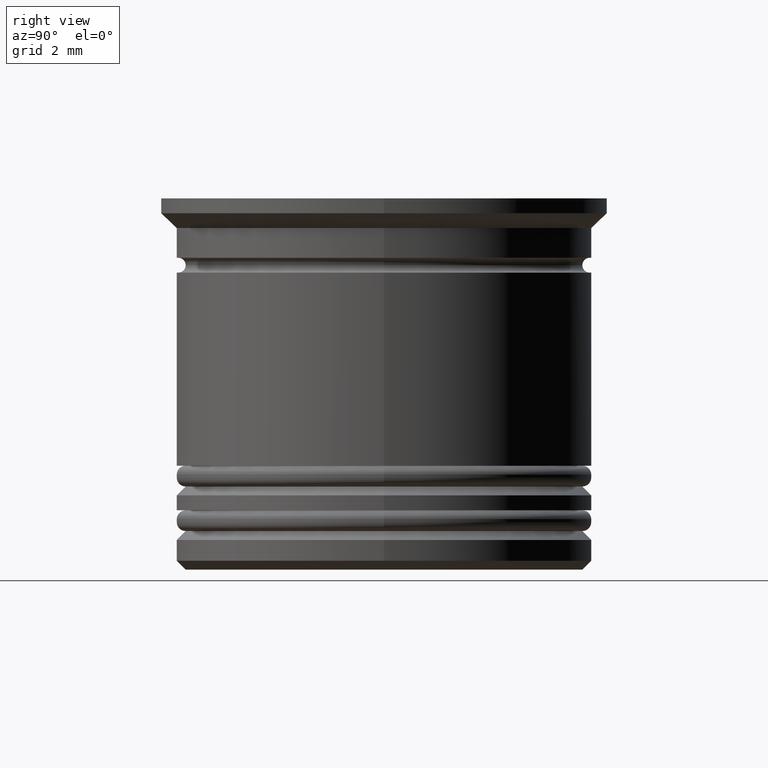
[diagram: clean part render]
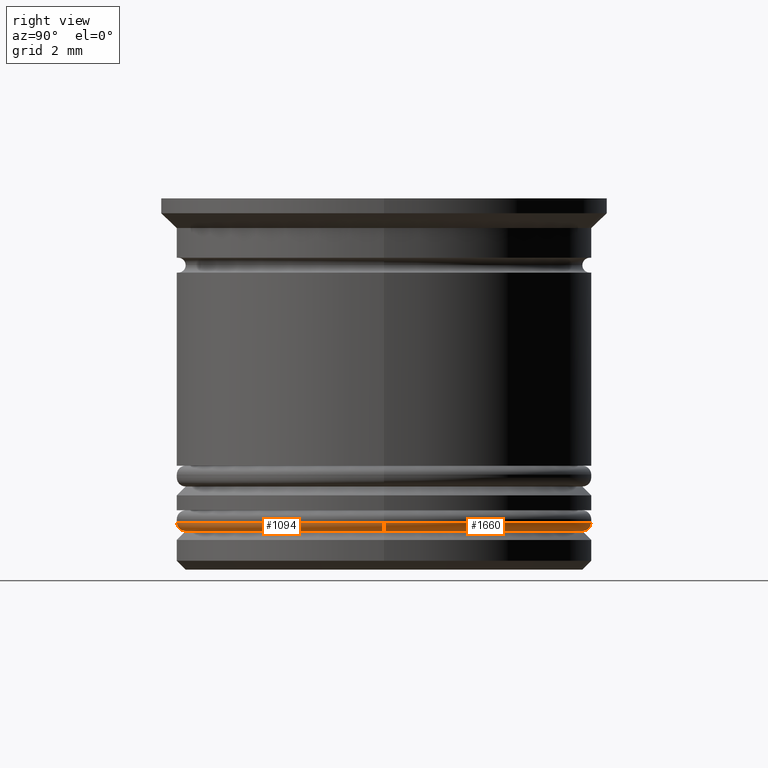
[diagram: same view with one multi-face feature highlighted, each face labeled with its STEP entity id]
A machine part, right view. The highlighted faces form ONE feature: a constant-radius fillet chain: 2 tangent blend faces with common blend radius 0.3 mm. The faces share edges in the B-rep.
Their STEP definitions:
[1] entity #1094 (Torus):
#6 = DIRECTION ( 'NONE',  ( 0.000000000000000000, 0.000000000000000000, -1.000000000000000000 ) ) ;
#9 = DIRECTION ( 'NONE',  ( 1.000000000000000000, 0.000000000000000000, 0.000000000000000000 ) ) ;
#13 = CIRCLE ( 'NONE', #1136, 0.2999999999999999334 ) ;
#179 = EDGE_LOOP ( 'NONE', ( #1216, #1635, #955, #1517 ) ) ;
#194 = CARTESIAN_POINT ( 'NONE',  ( 0.000000000000000000, 0.000000000000000000, -11.20000000000000462 ) ) ;
#198 = EDGE_CURVE ( 'NONE', #1273, #1193, #13, .T. ) ;
#200 = CARTESIAN_POINT ( 'NONE',  ( 6.700000000000002842, 0.000000000000000000, -11.20000000000000462 ) ) ;
#312 = CARTESIAN_POINT ( 'NONE',  ( 6.700000000000002842, 0.000000000000000000, -10.90000000000000391 ) ) ;
#365 = VERTEX_POINT ( 'NONE', #1040 ) ;
#402 = CARTESIAN_POINT ( 'NONE',  ( -7.000000000000002665, 8.572527594031475162E-16, -10.90000000000000391 ) ) ;
#411 = CIRCLE ( 'NONE', #1265, 0.2999999999999999334 ) ;
#453 = DIRECTION ( 'NONE',  ( 0.000000000000000000, 0.000000000000000000, 1.000000000000000000 ) ) ;
#558 = EDGE_CURVE ( 'NONE', #365, #560, #411, .T. ) ;
#560 = VERTEX_POINT ( 'NONE', #402 ) ;
#567 = AXIS2_PLACEMENT_3D ( 'NONE', #1694, #453, #9 ) ;
#828 = CIRCLE ( 'NONE', #1955, 6.700000000000002842 ) ;
#867 = DIRECTION ( 'NONE',  ( -1.000000000000000000, 1.224646799147353207E-16, 0.000000000000000000 ) ) ;
#892 = AXIS2_PLACEMENT_3D ( 'NONE', #1036, #1806, #1055 ) ;
#955 = ORIENTED_EDGE ( 'NONE', *, *, #198, .T. ) ;
#1036 = CARTESIAN_POINT ( 'NONE',  ( 0.000000000000000000, 0.000000000000000000, -10.90000000000000391 ) ) ;
#1040 = CARTESIAN_POINT ( 'NONE',  ( -6.700000000000002842, 8.388830574159372834E-16, -11.20000000000000462 ) ) ;
#1055 = DIRECTION ( 'NONE',  ( 1.000000000000000000, 0.000000000000000000, 0.000000000000000000 ) ) ;
#1094 = ADVANCED_FACE ( 'NONE', ( #1840 ), #1362, .T. ) ;
#1136 = AXIS2_PLACEMENT_3D ( 'NONE', #312, #1376, #6 ) ;
#1193 = VERTEX_POINT ( 'NONE', #1510 ) ;
#1216 = ORIENTED_EDGE ( 'NONE', *, *, #558, .F. ) ;
#1265 = AXIS2_PLACEMENT_3D ( 'NONE', #1284, #1774, #867 ) ;
#1266 = DIRECTION ( 'NONE',  ( -0.000000000000000000, -0.000000000000000000, -1.000000000000000000 ) ) ;
#1273 = VERTEX_POINT ( 'NONE', #200 ) ;
#1284 = CARTESIAN_POINT ( 'NONE',  ( -6.700000000000002842, 8.205133554287269520E-16, -10.90000000000000391 ) ) ;
#1358 = CIRCLE ( 'NONE', #567, 7.000000000000002665 ) ;
#1362 = TOROIDAL_SURFACE ( 'NONE', #892, 6.700000000000002842, 0.2999999999999999889 ) ;
#1376 = DIRECTION ( 'NONE',  ( 0.000000000000000000, -1.000000000000000000, 0.000000000000000000 ) ) ;
#1510 = CARTESIAN_POINT ( 'NONE',  ( 7.000000000000002665, 0.000000000000000000, -10.90000000000000391 ) ) ;
#1517 = ORIENTED_EDGE ( 'NONE', *, *, #1859, .F. ) ;
#1635 = ORIENTED_EDGE ( 'NONE', *, *, #1700, .F. ) ;
#1694 = CARTESIAN_POINT ( 'NONE',  ( 0.000000000000000000, 0.000000000000000000, -10.90000000000000391 ) ) ;
#1700 = EDGE_CURVE ( 'NONE', #1273, #365, #828, .T. ) ;
#1747 = DIRECTION ( 'NONE',  ( 1.000000000000000000, 0.000000000000000000, 0.000000000000000000 ) ) ;
#1774 = DIRECTION ( 'NONE',  ( 1.224646799147353207E-16, 1.000000000000000000, -0.000000000000000000 ) ) ;
#1806 = DIRECTION ( 'NONE',  ( 0.000000000000000000, 0.000000000000000000, 1.000000000000000000 ) ) ;
#1840 = FACE_OUTER_BOUND ( 'NONE', #179, .T. ) ;
#1859 = EDGE_CURVE ( 'NONE', #560, #1193, #1358, .T. ) ;
#1955 = AXIS2_PLACEMENT_3D ( 'NONE', #194, #1266, #1747 ) ;
[2] entity #1660 (Torus):
#6 = DIRECTION ( 'NONE',  ( 0.000000000000000000, 0.000000000000000000, -1.000000000000000000 ) ) ;
#13 = CIRCLE ( 'NONE', #1136, 0.2999999999999999334 ) ;
#23 = DIRECTION ( 'NONE',  ( 0.000000000000000000, 0.000000000000000000, 1.000000000000000000 ) ) ;
#32 = DIRECTION ( 'NONE',  ( 1.000000000000000000, 0.000000000000000000, 0.000000000000000000 ) ) ;
#187 = CARTESIAN_POINT ( 'NONE',  ( 0.000000000000000000, 0.000000000000000000, -11.20000000000000462 ) ) ;
#198 = EDGE_CURVE ( 'NONE', #1273, #1193, #13, .T. ) ;
#200 = CARTESIAN_POINT ( 'NONE',  ( 6.700000000000002842, 0.000000000000000000, -11.20000000000000462 ) ) ;
#230 = EDGE_CURVE ( 'NONE', #365, #1273, #692, .T. ) ;
#257 = ORIENTED_EDGE ( 'NONE', *, *, #1929, .F. ) ;
#312 = CARTESIAN_POINT ( 'NONE',  ( 6.700000000000002842, 0.000000000000000000, -10.90000000000000391 ) ) ;
#330 = CARTESIAN_POINT ( 'NONE',  ( 0.000000000000000000, 0.000000000000000000, -10.90000000000000391 ) ) ;
#365 = VERTEX_POINT ( 'NONE', #1040 ) ;
#402 = CARTESIAN_POINT ( 'NONE',  ( -7.000000000000002665, 8.572527594031475162E-16, -10.90000000000000391 ) ) ;
#411 = CIRCLE ( 'NONE', #1265, 0.2999999999999999334 ) ;
#513 = TOROIDAL_SURFACE ( 'NONE', #1622, 6.700000000000002842, 0.2999999999999999889 ) ;
#528 = EDGE_LOOP ( 'NONE', ( #1868, #1715, #257, #1963 ) ) ;
#558 = EDGE_CURVE ( 'NONE', #365, #560, #411, .T. ) ;
#560 = VERTEX_POINT ( 'NONE', #402 ) ;
#692 = CIRCLE ( 'NONE', #1454, 6.700000000000002842 ) ;
#756 = CIRCLE ( 'NONE', #1551, 7.000000000000002665 ) ;
#817 = DIRECTION ( 'NONE',  ( 1.000000000000000000, 0.000000000000000000, 0.000000000000000000 ) ) ;
#838 = FACE_OUTER_BOUND ( 'NONE', #528, .T. ) ;
#867 = DIRECTION ( 'NONE',  ( -1.000000000000000000, 1.224646799147353207E-16, 0.000000000000000000 ) ) ;
#1040 = CARTESIAN_POINT ( 'NONE',  ( -6.700000000000002842, 8.388830574159372834E-16, -11.20000000000000462 ) ) ;
#1108 = CARTESIAN_POINT ( 'NONE',  ( 0.000000000000000000, 0.000000000000000000, -10.90000000000000391 ) ) ;
#1136 = AXIS2_PLACEMENT_3D ( 'NONE', #312, #1376, #6 ) ;
#1193 = VERTEX_POINT ( 'NONE', #1510 ) ;
#1265 = AXIS2_PLACEMENT_3D ( 'NONE', #1284, #1774, #867 ) ;
#1273 = VERTEX_POINT ( 'NONE', #200 ) ;
#1280 = DIRECTION ( 'NONE',  ( -0.000000000000000000, -0.000000000000000000, -1.000000000000000000 ) ) ;
#1284 = CARTESIAN_POINT ( 'NONE',  ( -6.700000000000002842, 8.205133554287269520E-16, -10.90000000000000391 ) ) ;
#1376 = DIRECTION ( 'NONE',  ( 0.000000000000000000, -1.000000000000000000, 0.000000000000000000 ) ) ;
#1386 = DIRECTION ( 'NONE',  ( 1.000000000000000000, 0.000000000000000000, 0.000000000000000000 ) ) ;
#1454 = AXIS2_PLACEMENT_3D ( 'NONE', #187, #1280, #1386 ) ;
#1510 = CARTESIAN_POINT ( 'NONE',  ( 7.000000000000002665, 0.000000000000000000, -10.90000000000000391 ) ) ;
#1551 = AXIS2_PLACEMENT_3D ( 'NONE', #330, #23, #32 ) ;
#1560 = DIRECTION ( 'NONE',  ( 0.000000000000000000, 0.000000000000000000, 1.000000000000000000 ) ) ;
#1622 = AXIS2_PLACEMENT_3D ( 'NONE', #1108, #1560, #817 ) ;
#1660 = ADVANCED_FACE ( 'NONE', ( #838 ), #513, .T. ) ;
#1715 = ORIENTED_EDGE ( 'NONE', *, *, #558, .T. ) ;
#1774 = DIRECTION ( 'NONE',  ( 1.224646799147353207E-16, 1.000000000000000000, -0.000000000000000000 ) ) ;
#1868 = ORIENTED_EDGE ( 'NONE', *, *, #230, .F. ) ;
#1929 = EDGE_CURVE ( 'NONE', #1193, #560, #756, .T. ) ;
#1963 = ORIENTED_EDGE ( 'NONE', *, *, #198, .F. ) ;